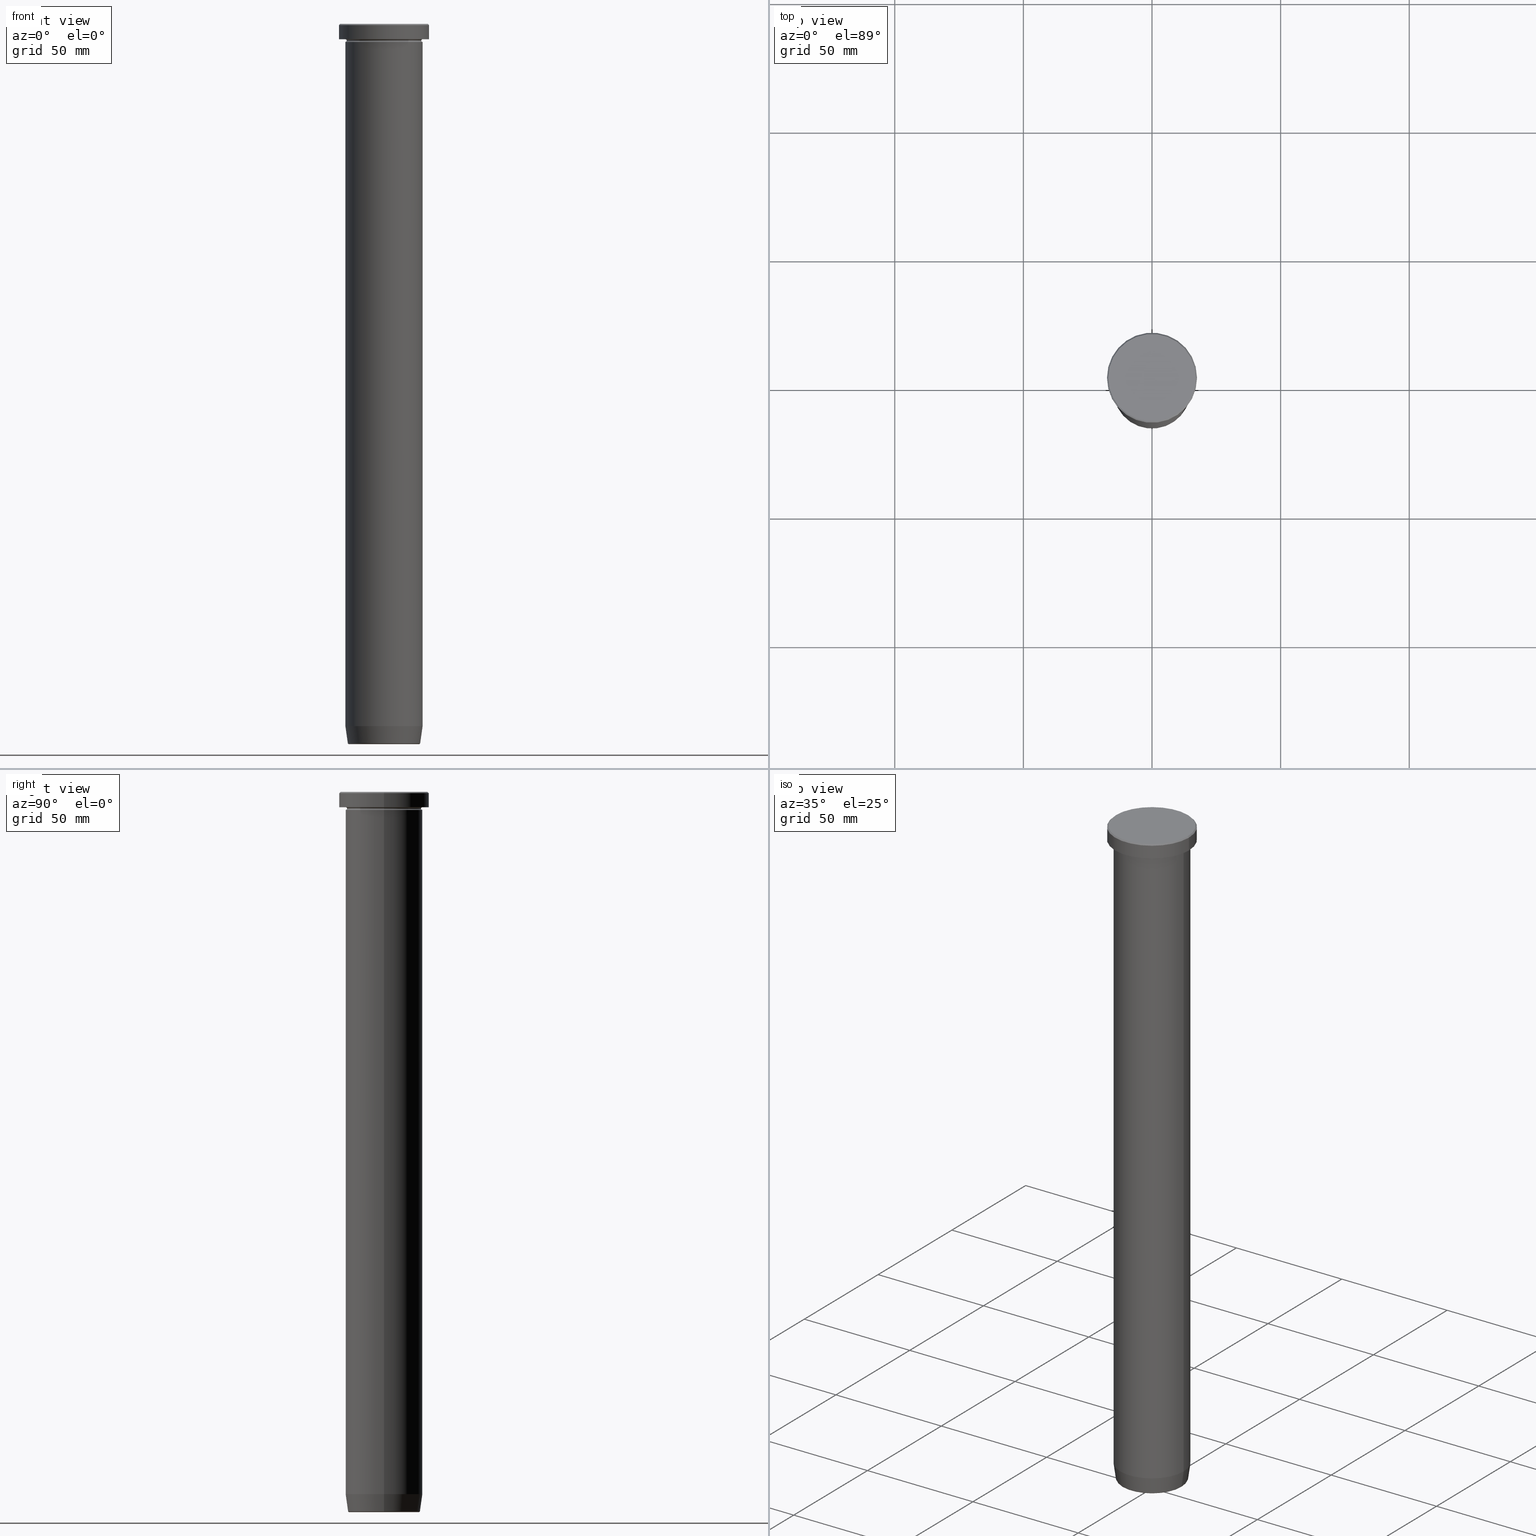
[diagram: canonical four-view strip — front | top / right | iso, engineering-drawing reading convention]
A machine part, canonical four-view strip (front | top / right | iso — engineering-drawing reading convention). The complete STEP part file that produces these views, byte-faithful:
ISO-10303-21;
HEADER;
FILE_DESCRIPTION (( 'STEP AP203' ),
    '1' );
FILE_NAME ('0d3d.STEP',
    '2024-01-02T17:49:23',
    ( '' ),
    ( '' ),
    'SwSTEP 2.0',
    'SolidWorks 2019',
    '' );
FILE_SCHEMA (( 'CONFIG_CONTROL_DESIGN' ));
ENDSEC;

DATA;
#1 = CARTESIAN_POINT ( 'NONE',  ( 0.000000000000000000, 0.000000000000000000, -6.499999999999999112 ) ) ;
#2 = AXIS2_PLACEMENT_3D ( 'NONE', #531, #187, #538 ) ;
#3 = VECTOR ( 'NONE', #555, 1000.000000000000000 ) ;
#4 = DIRECTION ( 'NONE',  ( -1.224646799147353207E-16, 1.000000000000000000, 0.000000000000000000 ) ) ;
#5 = ORIENTED_EDGE ( 'NONE', *, *, #525, .F. ) ;
#6 = LINE ( 'NONE', #207, #475 ) ;
#7 = CARTESIAN_POINT ( 'NONE',  ( 0.000000000000000000, 0.000000000000000000, -5.999999999999999112 ) ) ;
#8 = DIRECTION ( 'NONE',  ( -1.000000000000000000, 0.000000000000000000, 0.000000000000000000 ) ) ;
#9 = EDGE_CURVE ( 'NONE', #55, #444, #69, .T. ) ;
#10 = VERTEX_POINT ( 'NONE', #107 ) ;
#11 = DIRECTION ( 'NONE',  ( 1.000000000000000000, 0.000000000000000000, 0.000000000000000000 ) ) ;
#12 = AXIS2_PLACEMENT_3D ( 'NONE', #355, #528, #245 ) ;
#13 = CARTESIAN_POINT ( 'NONE',  ( 0.000000000000000000, 0.000000000000000000, -279.4999999999999432 ) ) ;
#14 = DIRECTION ( 'NONE',  ( 1.000000000000000000, 0.000000000000000000, 0.000000000000000000 ) ) ;
#15 = PRODUCT_RELATED_PRODUCT_CATEGORY ( 'detail', '', ( #356 ) ) ;
#16 = ORIENTED_EDGE ( 'NONE', *, *, #377, .T. ) ;
#17 = ADVANCED_FACE ( 'NONE', ( #269 ), #265, .T. ) ;
#18 = DIRECTION ( 'NONE',  ( 1.000000000000000000, 0.000000000000000000, 0.000000000000000000 ) ) ;
#19 = ORIENTED_EDGE ( 'NONE', *, *, #571, .F. ) ;
#20 = AXIS2_PLACEMENT_3D ( 'NONE', #497, #111, #354 ) ;
#21 = AXIS2_PLACEMENT_3D ( 'NONE', #273, #219, #26 ) ;
#22 = CARTESIAN_POINT ( 'NONE',  ( -17.50000000000000000, 2.143131898507868248E-15, -0.5000000000000073275 ) ) ;
#23 = EDGE_LOOP ( 'NONE', ( #110, #16, #183, #30 ) ) ;
#24 = ORIENTED_EDGE ( 'NONE', *, *, #389, .T. ) ;
#25 = DIRECTION ( 'NONE',  ( 1.000000000000000000, 0.000000000000000000, 0.000000000000000000 ) ) ;
#26 = DIRECTION ( 'NONE',  ( -1.000000000000000000, 0.000000000000000000, 0.000000000000000000 ) ) ;
#27 = ORIENTED_EDGE ( 'NONE', *, *, #334, .F. ) ;
#28 = ORIENTED_EDGE ( 'NONE', *, *, #389, .F. ) ;
#29 = ORIENTED_EDGE ( 'NONE', *, *, #38, .F. ) ;
#30 = ORIENTED_EDGE ( 'NONE', *, *, #420, .F. ) ;
#31 = CARTESIAN_POINT ( 'NONE',  ( -17.00000000000000000, 0.000000000000000000, 0.000000000000000000 ) ) ;
#32 = PERSON_AND_ORGANIZATION_ROLE ( 'creator' ) ;
#33 = AXIS2_PLACEMENT_3D ( 'NONE', #40, #128, #409 ) ;
#34 = CIRCLE ( 'NONE', #12, 17.50000000000000000 ) ;
#35 = CC_DESIGN_PERSON_AND_ORGANIZATION_ASSIGNMENT ( #550, #32, ( #427 ) ) ;
#36 = DIRECTION ( 'NONE',  ( 1.000000000000000000, 0.000000000000000000, 0.000000000000000000 ) ) ;
#37 =( GEOMETRIC_REPRESENTATION_CONTEXT ( 3 ) GLOBAL_UNCERTAINTY_ASSIGNED_CONTEXT ( ( #295 ) ) GLOBAL_UNIT_ASSIGNED_CONTEXT ( ( #42, #567, #325 ) ) REPRESENTATION_CONTEXT ( 'NONE', 'WORKASPACE' ) );
#38 = EDGE_CURVE ( 'NONE', #401, #10, #486, .T. ) ;
#39 = PERSON_AND_ORGANIZATION ( #157, #470 ) ;
#40 = CARTESIAN_POINT ( 'NONE',  ( 0.000000000000000000, 15.00000000000000000, -36.00000000000000000 ) ) ;
#41 = VERTEX_POINT ( 'NONE', #22 ) ;
#42 =( LENGTH_UNIT ( ) NAMED_UNIT ( * ) SI_UNIT ( .MILLI., .METRE. ) );
#43 = AXIS2_PLACEMENT_3D ( 'NONE', #326, #319, #541 ) ;
#44 = APPROVAL_ROLE ( '' ) ;
#45 = PERSON_AND_ORGANIZATION_ROLE ( 'design_owner' ) ;
#46 = DIRECTION ( 'NONE',  ( -1.000000000000000000, 1.224646799147353454E-16, 0.000000000000000000 ) ) ;
#47 = DIRECTION ( 'NONE',  ( -0.000000000000000000, -0.000000000000000000, 1.000000000000000000 ) ) ;
#48 = ORIENTED_EDGE ( 'NONE', *, *, #226, .T. ) ;
#49 = AXIS2_PLACEMENT_3D ( 'NONE', #244, #414, #376 ) ;
#50 = EDGE_CURVE ( 'NONE', #575, #443, #556, .T. ) ;
#51 = ORIENTED_EDGE ( 'NONE', *, *, #461, .F. ) ;
#52 = CIRCLE ( 'NONE', #379, 0.5000000000000004441 ) ;
#53 = AXIS2_PLACEMENT_3D ( 'NONE', #374, #368, #258 ) ;
#54 = DIRECTION ( 'NONE',  ( -0.000000000000000000, -0.000000000000000000, 1.000000000000000000 ) ) ;
#55 = VERTEX_POINT ( 'NONE', #166 ) ;
#56 = DIRECTION ( 'NONE',  ( -0.000000000000000000, -1.000000000000000000, -0.000000000000000000 ) ) ;
#57 = CARTESIAN_POINT ( 'NONE',  ( 0.000000000000000000, 0.000000000000000000, -36.00000000000000000 ) ) ;
#58 = CARTESIAN_POINT ( 'NONE',  ( 0.000000000000000000, 0.000000000000000000, 0.000000000000000000 ) ) ;
#59 = AXIS2_PLACEMENT_3D ( 'NONE', #267, #309, #63 ) ;
#60 = DIRECTION ( 'NONE',  ( -0.000000000000000000, -0.000000000000000000, 1.000000000000000000 ) ) ;
#61 = EDGE_CURVE ( 'NONE', #41, #599, #34, .T. ) ;
#62 = DIRECTION ( 'NONE',  ( 0.000000000000000000, 0.000000000000000000, -1.000000000000000000 ) ) ;
#63 = DIRECTION ( 'NONE',  ( 1.000000000000000000, 0.000000000000000000, 0.000000000000000000 ) ) ;
#64 = VERTEX_POINT ( 'NONE', #416 ) ;
#65 = EDGE_LOOP ( 'NONE', ( #496, #504, #314, #425 ) ) ;
#66 = ORIENTED_EDGE ( 'NONE', *, *, #482, .T. ) ;
#67 = CONICAL_SURFACE ( 'NONE', #408, 17.00000000000000000, 0.7853981633974415066 ) ;
#68 = FACE_OUTER_BOUND ( 'NONE', #179, .T. ) ;
#69 = CIRCLE ( 'NONE', #514, 14.49999999999999822 ) ;
#70 = VERTEX_POINT ( 'NONE', #141 ) ;
#71 = CARTESIAN_POINT ( 'NONE',  ( -15.00000000000000000, 1.836970198721029589E-15, -272.9999999999999432 ) ) ;
#72 = EDGE_CURVE ( 'NONE', #10, #437, #353, .T. ) ;
#73 = FACE_OUTER_BOUND ( 'NONE', #546, .T. ) ;
#74 = PERSON_AND_ORGANIZATION ( #157, #470 ) ;
#75 = CONICAL_SURFACE ( 'NONE', #250, 14.01621415708325280, 0.1396263401595470577 ) ;
#76 = EDGE_CURVE ( 'NONE', #143, #64, #522, .T. ) ;
#77 = DIRECTION ( 'NONE',  ( 0.000000000000000000, 0.000000000000000000, -1.000000000000000000 ) ) ;
#78 = CALENDAR_DATE ( 2024, 2, 1 ) ;
#79 = ORIENTED_EDGE ( 'NONE', *, *, #552, .F. ) ;
#80 = DIRECTION ( 'NONE',  ( 1.224646799147353207E-16, 1.000000000000000000, 0.000000000000000000 ) ) ;
#81 = APPROVAL ( #373, 'NEUR�EN�' ) ;
#82 = CARTESIAN_POINT ( 'NONE',  ( 0.000000000000000000, 0.000000000000000000, -279.5695865504799826 ) ) ;
#83 = AXIS2_PLACEMENT_3D ( 'NONE', #299, #253, #431 ) ;
#84 = FACE_BOUND ( 'NONE', #371, .T. ) ;
#85 = VERTEX_POINT ( 'NONE', #342 ) ;
#86 = ORIENTED_EDGE ( 'NONE', *, *, #242, .T. ) ;
#87 = EDGE_CURVE ( 'NONE', #444, #55, #563, .T. ) ;
#88 = ADVANCED_FACE ( 'NONE', ( #383 ), #310, .T. ) ;
#89 = DIRECTION ( 'NONE',  ( -0.000000000000000000, -0.000000000000000000, 1.000000000000000000 ) ) ;
#90 = CIRCLE ( 'NONE', #392, 0.5000000000000004441 ) ;
#91 = AXIS2_PLACEMENT_3D ( 'NONE', #469, #348, #292 ) ;
#92 = ORIENTED_EDGE ( 'NONE', *, *, #535, .F. ) ;
#93 = CIRCLE ( 'NONE', #202, 15.00000000000000000 ) ;
#94 = DIRECTION ( 'NONE',  ( 0.000000000000000000, 0.000000000000000000, -1.000000000000000000 ) ) ;
#95 = ORIENTED_EDGE ( 'NONE', *, *, #209, .T. ) ;
#96 = DIRECTION ( 'NONE',  ( -1.000000000000000000, 0.000000000000000000, 0.000000000000000000 ) ) ;
#97 = EDGE_CURVE ( 'NONE', #264, #437, #302, .T. ) ;
#98 = FACE_OUTER_BOUND ( 'NONE', #212, .T. ) ;
#99 = FACE_OUTER_BOUND ( 'NONE', #341, .T. ) ;
#100 = ORIENTED_EDGE ( 'NONE', *, *, #518, .F. ) ;
#101 = LOCAL_TIME ( 18, 49, 23.00000000000000000, #407 ) ;
#102 = FACE_OUTER_BOUND ( 'NONE', #381, .T. ) ;
#103 = ORIENTED_EDGE ( 'NONE', *, *, #362, .F. ) ;
#104 = DIRECTION ( 'NONE',  ( -1.000000000000000000, 1.224646799147349509E-16, 0.000000000000000000 ) ) ;
#105 = AXIS2_PLACEMENT_3D ( 'NONE', #261, #390, #8 ) ;
#106 = AXIS2_PLACEMENT_3D ( 'NONE', #58, #474, #151 ) ;
#107 = CARTESIAN_POINT ( 'NONE',  ( 15.00000000000000000, 0.000000000000000000, -36.00000000000000000 ) ) ;
#108 = PRODUCT_DEFINITION ( 'NEZN�M�', '', #427, #351 ) ;
#109 = VERTEX_POINT ( 'NONE', #122 ) ;
#110 = ORIENTED_EDGE ( 'NONE', *, *, #9, .T. ) ;
#111 = DIRECTION ( 'NONE',  ( 0.000000000000000000, -1.000000000000000000, 0.000000000000000000 ) ) ;
#112 = ORIENTED_EDGE ( 'NONE', *, *, #579, .F. ) ;
#113 = CYLINDRICAL_SURFACE ( 'NONE', #43, 17.50000000000000000 ) ;
#114 = ORIENTED_EDGE ( 'NONE', *, *, #238, .T. ) ;
#115 = LINE ( 'NONE', #584, #592 ) ;
#116 = CALENDAR_DATE ( 2024, 2, 1 ) ;
#117 = CARTESIAN_POINT ( 'NONE',  ( 0.000000000000000000, 0.000000000000000000, 0.000000000000000000 ) ) ;
#118 = PERSON_AND_ORGANIZATION_ROLE ( 'design_supplier' ) ;
#119 = CARTESIAN_POINT ( 'NONE',  ( 17.50000000000000000, 0.000000000000000000, -0.5000000000000073275 ) ) ;
#120 = EDGE_CURVE ( 'NONE', #444, #143, #52, .T. ) ;
#121 = DIRECTION ( 'NONE',  ( -0.000000000000000000, -0.000000000000000000, 1.000000000000000000 ) ) ;
#122 = CARTESIAN_POINT ( 'NONE',  ( 14.07670482254592592, 0.000000000000000000, -279.5695865504799826 ) ) ;
#123 = CIRCLE ( 'NONE', #346, 17.50000000000000000 ) ;
#124 = APPLICATION_PROTOCOL_DEFINITION ( 'international standard', 'config_control_design', 1994, #484 ) ;
#125 = DIRECTION ( 'NONE',  ( -1.000000000000000000, 0.000000000000000000, -0.000000000000000000 ) ) ;
#126 = DIRECTION ( 'NONE',  ( 0.000000000000000000, 0.000000000000000000, -1.000000000000000000 ) ) ;
#127 = EDGE_LOOP ( 'NONE', ( #5, #578, #480, #384 ) ) ;
#128 = DIRECTION ( 'NONE',  ( 0.000000000000000000, 0.000000000000000000, -1.000000000000000000 ) ) ;
#129 = CARTESIAN_POINT ( 'NONE',  ( -15.00000000000000000, 0.000000000000000000, -5.999999999999998224 ) ) ;
#130 = FACE_OUTER_BOUND ( 'NONE', #131, .T. ) ;
#131 = EDGE_LOOP ( 'NONE', ( #19, #92, #210, #112 ) ) ;
#132 = DIRECTION ( 'NONE',  ( 0.7071067811865426878, 8.659560562354874926E-17, -0.7071067811865524577 ) ) ;
#133 = ADVANCED_BREP_SHAPE_REPRESENTATION ( '0d3d', ( #186, #169, #349 ), #37 ) ;
#134 = VERTEX_POINT ( 'NONE', #256 ) ;
#135 = AXIS2_PLACEMENT_3D ( 'NONE', #365, #530, #125 ) ;
#136 = DIRECTION ( 'NONE',  ( -0.000000000000000000, -0.000000000000000000, 1.000000000000000000 ) ) ;
#137 = AXIS2_PLACEMENT_3D ( 'NONE', #296, #54, #251 ) ;
#138 = CARTESIAN_POINT ( 'NONE',  ( 0.000000000000000000, 0.000000000000000000, -5.999999999999999112 ) ) ;
#139 = TOROIDAL_SURFACE ( 'NONE', #423, 15.00000000000000000, 0.5000000000000000000 ) ;
#140 = FACE_OUTER_BOUND ( 'NONE', #65, .T. ) ;
#141 = CARTESIAN_POINT ( 'NONE',  ( 17.00000000000000000, 2.112515728529184067E-15, 0.000000000000000000 ) ) ;
#142 = CARTESIAN_POINT ( 'NONE',  ( 14.49999999999999822, 0.000000000000000000, -6.499999999999999112 ) ) ;
#143 = VERTEX_POINT ( 'NONE', #211 ) ;
#144 = CARTESIAN_POINT ( 'NONE',  ( 15.00000000000000000, 0.000000000000000000, -36.00000000000000000 ) ) ;
#145 = CARTESIAN_POINT ( 'NONE',  ( -17.50000000000000000, 2.143131898507868248E-15, -5.999999999999999112 ) ) ;
#146 = APPROVAL_PERSON_ORGANIZATION ( #74, #178, #44 ) ;
#147 = DIRECTION ( 'NONE',  ( -0.000000000000000000, -0.000000000000000000, 1.000000000000000000 ) ) ;
#148 = CARTESIAN_POINT ( 'NONE',  ( -15.00000000000000000, 1.836970198721029589E-15, -36.00000000000000000 ) ) ;
#149 = ORIENTED_EDGE ( 'NONE', *, *, #426, .T. ) ;
#150 = LINE ( 'NONE', #204, #3 ) ;
#151 = DIRECTION ( 'NONE',  ( 1.000000000000000000, 0.000000000000000000, 0.000000000000000000 ) ) ;
#152 = ORIENTED_EDGE ( 'NONE', *, *, #367, .T. ) ;
#153 = TOROIDAL_SURFACE ( 'NONE', #105, 15.00000000000000000, 0.5000000000000000000 ) ;
#154 = DIRECTION ( 'NONE',  ( 1.000000000000000000, 0.000000000000000000, 0.000000000000000000 ) ) ;
#155 = EDGE_LOOP ( 'NONE', ( #198, #149 ) ) ;
#156 = DIRECTION ( 'NONE',  ( 0.000000000000000000, -0.000000000000000000, 1.000000000000000000 ) ) ;
#157 = PERSON ( 'NEUR�EN�', 'NEUR�EN�', 'NEUR�EN�', ('NEUR�EN�'), ('NEUR�EN�'), ('NEUR�EN�') ) ;
#158 = CARTESIAN_POINT ( 'NONE',  ( 0.000000000000000000, 0.000000000000000000, -279.9999999999999432 ) ) ;
#159 = LINE ( 'NONE', #520, #307 ) ;
#160 = EDGE_CURVE ( 'NONE', #55, #64, #460, .T. ) ;
#161 = CARTESIAN_POINT ( 'NONE',  ( 0.000000000000000000, 0.000000000000000000, -6.999999999999999112 ) ) ;
#162 = DIRECTION ( 'NONE',  ( -0.000000000000000000, -0.000000000000000000, 1.000000000000000000 ) ) ;
#163 = CIRCLE ( 'NONE', #175, 15.00000000000000000 ) ;
#164 = CARTESIAN_POINT ( 'NONE',  ( 15.00000000000000000, 0.000000000000000000, 0.000000000000000000 ) ) ;
#165 = ORIENTED_EDGE ( 'NONE', *, *, #293, .T. ) ;
#166 = CARTESIAN_POINT ( 'NONE',  ( -14.49999999999999822, 1.806354028742345802E-15, -6.499999999999999112 ) ) ;
#167 = FACE_OUTER_BOUND ( 'NONE', #559, .T. ) ;
#168 = DIRECTION ( 'NONE',  ( -1.000000000000000000, 0.000000000000000000, 0.000000000000000000 ) ) ;
#169 = MANIFOLD_SOLID_BREP ( 'Zaoblit4', #320 ) ;
#170 = EDGE_LOOP ( 'NONE', ( #554, #312, #217, #583 ) ) ;
#171 = AXIS2_PLACEMENT_3D ( 'NONE', #82, #594, #421 ) ;
#172 = FACE_OUTER_BOUND ( 'NONE', #387, .T. ) ;
#173 = CIRCLE ( 'NONE', #20, 0.5000000000000004441 ) ;
#174 = AXIS2_PLACEMENT_3D ( 'NONE', #216, #311, #316 ) ;
#175 = AXIS2_PLACEMENT_3D ( 'NONE', #7, #566, #96 ) ;
#176 = PLANE ( 'NONE',  #259 ) ;
#177 = CARTESIAN_POINT ( 'NONE',  ( -13.58157078817513508, 1.663262719313187360E-15, -279.4999999999999432 ) ) ;
#178 = APPROVAL ( #589, 'NEUR�EN�' ) ;
#179 = EDGE_LOOP ( 'NONE', ( #165, #225, #205, #235 ) ) ;
#180 = COORDINATED_UNIVERSAL_TIME_OFFSET ( 1, 0, .AHEAD. ) ;
#181 = DIRECTION ( 'NONE',  ( -1.000000000000000000, 0.000000000000000000, 0.000000000000000000 ) ) ;
#182 = DATE_TIME_ROLE ( 'creation_date' ) ;
#183 = ORIENTED_EDGE ( 'NONE', *, *, #50, .F. ) ;
#184 = CARTESIAN_POINT ( 'NONE',  ( 0.000000000000000000, 0.000000000000000000, -6.499999999999999112 ) ) ;
#185 = DIRECTION ( 'NONE',  ( 1.000000000000000000, 0.000000000000000000, 0.000000000000000000 ) ) ;
#186 = MANIFOLD_SOLID_BREP ( 'Zkosen�1', #359 ) ;
#187 = DIRECTION ( 'NONE',  ( -0.000000000000000000, -0.000000000000000000, 1.000000000000000000 ) ) ;
#188 = CIRCLE ( 'NONE', #171, 14.07670482254592592 ) ;
#189 = CARTESIAN_POINT ( 'NONE',  ( 0.000000000000000000, 0.000000000000000000, 0.000000000000000000 ) ) ;
#190 = AXIS2_PLACEMENT_3D ( 'NONE', #184, #285, #228 ) ;
#191 = ADVANCED_FACE ( 'NONE', ( #99 ), #153, .F. ) ;
#192 = EDGE_CURVE ( 'NONE', #134, #305, #577, .T. ) ;
#193 = CARTESIAN_POINT ( 'NONE',  ( -17.00000000000000000, 0.000000000000000000, 0.000000000000000000 ) ) ;
#194 = CARTESIAN_POINT ( 'NONE',  ( -15.00000000000000000, 1.836970198721029589E-15, -6.499999999999999112 ) ) ;
#195 = DIRECTION ( 'NONE',  ( 1.000000000000000000, 0.000000000000000000, 0.000000000000000000 ) ) ;
#196 = MECHANICAL_CONTEXT ( 'NONE', #484, 'mechanical' ) ;
#197 = APPROVAL_PERSON_ORGANIZATION ( #229, #81, #328 ) ;
#198 = ORIENTED_EDGE ( 'NONE', *, *, #72, .T. ) ;
#199 = CARTESIAN_POINT ( 'NONE',  ( 0.000000000000000000, 0.000000000000000000, -279.9999999999999432 ) ) ;
#200 = CC_DESIGN_SECURITY_CLASSIFICATION ( #501, ( #427 ) ) ;
#201 = DIRECTION ( 'NONE',  ( 1.000000000000000000, 0.000000000000000000, 0.000000000000000000 ) ) ;
#202 = AXIS2_PLACEMENT_3D ( 'NONE', #573, #121, #403 ) ;
#203 = AXIS2_PLACEMENT_3D ( 'NONE', #257, #598, #472 ) ;
#204 = CARTESIAN_POINT ( 'NONE',  ( -15.00000000000000000, 1.836970198721029589E-15, 0.000000000000000000 ) ) ;
#205 = ORIENTED_EDGE ( 'NONE', *, *, #206, .F. ) ;
#206 = EDGE_CURVE ( 'NONE', #401, #264, #239, .T. ) ;
#207 = CARTESIAN_POINT ( 'NONE',  ( 14.01621415708325280, 0.000000000000000000, -279.9999999999999432 ) ) ;
#208 = DIRECTION ( 'NONE',  ( 1.000000000000000000, 0.000000000000000000, 0.000000000000000000 ) ) ;
#209 = EDGE_CURVE ( 'NONE', #305, #134, #308, .T. ) ;
#210 = ORIENTED_EDGE ( 'NONE', *, *, #461, .T. ) ;
#211 = CARTESIAN_POINT ( 'NONE',  ( 15.00000000000000000, 0.000000000000000000, -6.999999999999999112 ) ) ;
#212 = EDGE_LOOP ( 'NONE', ( #317, #48, #289, #246 ) ) ;
#213 = DIRECTION ( 'NONE',  ( -0.000000000000000000, -0.000000000000000000, 1.000000000000000000 ) ) ;
#214 = VERTEX_POINT ( 'NONE', #278 ) ;
#215 = CARTESIAN_POINT ( 'NONE',  ( 15.00000000000000000, 0.000000000000000000, -6.499999999999999112 ) ) ;
#216 = CARTESIAN_POINT ( 'NONE',  ( 0.000000000000000000, 0.000000000000000000, 0.000000000000000000 ) ) ;
#217 = ORIENTED_EDGE ( 'NONE', *, *, #404, .T. ) ;
#218 = EDGE_CURVE ( 'NONE', #305, #143, #445, .T. ) ;
#219 = DIRECTION ( 'NONE',  ( -0.000000000000000000, -0.000000000000000000, 1.000000000000000000 ) ) ;
#220 = EDGE_LOOP ( 'NONE', ( #479, #248 ) ) ;
#221 = VERTEX_POINT ( 'NONE', #361 ) ;
#222 = ORIENTED_EDGE ( 'NONE', *, *, #218, .T. ) ;
#223 = DIRECTION ( 'NONE',  ( -0.000000000000000000, -0.000000000000000000, 1.000000000000000000 ) ) ;
#224 = ORIENTED_EDGE ( 'NONE', *, *, #242, .F. ) ;
#225 = ORIENTED_EDGE ( 'NONE', *, *, #568, .T. ) ;
#226 = EDGE_CURVE ( 'NONE', #264, #401, #93, .T. ) ;
#227 = ORIENTED_EDGE ( 'NONE', *, *, #293, .F. ) ;
#228 = DIRECTION ( 'NONE',  ( -1.000000000000000000, 0.000000000000000000, 0.000000000000000000 ) ) ;
#229 = PERSON_AND_ORGANIZATION ( #157, #470 ) ;
#230 = ADVANCED_FACE ( 'NONE', ( #449 ), #282, .T. ) ;
#231 = PLANE ( 'NONE',  #135 ) ;
#232 = AXIS2_PLACEMENT_3D ( 'NONE', #199, #136, #36 ) ;
#233 = LINE ( 'NONE', #323, #473 ) ;
#234 = APPROVAL_DATE_TIME ( #363, #178 ) ;
#235 = ORIENTED_EDGE ( 'NONE', *, *, #404, .F. ) ;
#236 = VERTEX_POINT ( 'NONE', #330 ) ;
#237 = COORDINATED_UNIVERSAL_TIME_OFFSET ( 1, 0, .AHEAD. ) ;
#238 = EDGE_CURVE ( 'NONE', #599, #41, #394, .T. ) ;
#239 = CIRCLE ( 'NONE', #59, 15.00000000000000000 ) ;
#240 = EDGE_LOOP ( 'NONE', ( #252, #448 ) ) ;
#241 = DATE_AND_TIME ( #279, #101 ) ;
#242 = EDGE_CURVE ( 'NONE', #364, #41, #115, .T. ) ;
#243 = ORIENTED_EDGE ( 'NONE', *, *, #97, .T. ) ;
#244 = CARTESIAN_POINT ( 'NONE',  ( 0.000000000000000000, 0.000000000000000000, 0.000000000000000000 ) ) ;
#245 = DIRECTION ( 'NONE',  ( 1.000000000000000000, 0.000000000000000000, 0.000000000000000000 ) ) ;
#246 = ORIENTED_EDGE ( 'NONE', *, *, #426, .F. ) ;
#247 = DIRECTION ( 'NONE',  ( -1.000000000000000000, -1.224646799147349509E-16, 0.000000000000000000 ) ) ;
#248 = ORIENTED_EDGE ( 'NONE', *, *, #370, .T. ) ;
#249 = DIRECTION ( 'NONE',  ( 1.000000000000000000, 0.000000000000000000, 0.000000000000000000 ) ) ;
#250 = AXIS2_PLACEMENT_3D ( 'NONE', #272, #398, #14 ) ;
#251 = DIRECTION ( 'NONE',  ( 1.000000000000000000, 0.000000000000000000, 0.000000000000000000 ) ) ;
#252 = ORIENTED_EDGE ( 'NONE', *, *, #209, .F. ) ;
#253 = DIRECTION ( 'NONE',  ( -0.000000000000000000, -0.000000000000000000, 1.000000000000000000 ) ) ;
#254 = CARTESIAN_POINT ( 'NONE',  ( -15.00000000000000000, 1.836970198721029589E-15, 0.000000000000000000 ) ) ;
#255 = FACE_OUTER_BOUND ( 'NONE', #23, .T. ) ;
#256 = CARTESIAN_POINT ( 'NONE',  ( -15.00000000000000000, 1.836970198721029589E-15, -36.00000000000000000 ) ) ;
#257 = CARTESIAN_POINT ( 'NONE',  ( 0.000000000000000000, 0.000000000000000000, 0.000000000000000000 ) ) ;
#258 = DIRECTION ( 'NONE',  ( -1.000000000000000000, 0.000000000000000000, -0.000000000000000000 ) ) ;
#259 = AXIS2_PLACEMENT_3D ( 'NONE', #526, #156, #411 ) ;
#260 = AXIS2_PLACEMENT_3D ( 'NONE', #161, #147, #519 ) ;
#261 = CARTESIAN_POINT ( 'NONE',  ( 0.000000000000000000, 0.000000000000000000, -6.499999999999999112 ) ) ;
#262 = ORIENTED_EDGE ( 'NONE', *, *, #377, .F. ) ;
#263 = LOCAL_TIME ( 18, 49, 23.00000000000000000, #180 ) ;
#264 = VERTEX_POINT ( 'NONE', #71 ) ;
#265 = CYLINDRICAL_SURFACE ( 'NONE', #174, 15.00000000000000000 ) ;
#266 = ORIENTED_EDGE ( 'NONE', *, *, #434, .T. ) ;
#267 = CARTESIAN_POINT ( 'NONE',  ( 0.000000000000000000, 0.000000000000000000, -272.9999999999999432 ) ) ;
#268 = DIRECTION ( 'NONE',  ( 0.000000000000000000, -1.000000000000000000, 0.000000000000000000 ) ) ;
#269 = FACE_OUTER_BOUND ( 'NONE', #529, .T. ) ;
#270 = CIRCLE ( 'NONE', #297, 0.5000000000000004441 ) ;
#271 = VECTOR ( 'NONE', #581, 1000.000000000000000 ) ;
#272 = CARTESIAN_POINT ( 'NONE',  ( 0.000000000000000000, 0.000000000000000000, -279.9999999999999432 ) ) ;
#273 = CARTESIAN_POINT ( 'NONE',  ( 0.000000000000000000, 0.000000000000000000, -5.999999999999999112 ) ) ;
#274 = DIRECTION ( 'NONE',  ( -0.000000000000000000, -0.000000000000000000, 1.000000000000000000 ) ) ;
#275 = LOCAL_TIME ( 18, 49, 23.00000000000000000, #593 ) ;
#276 = ORIENTED_EDGE ( 'NONE', *, *, #76, .T. ) ;
#277 = FACE_OUTER_BOUND ( 'NONE', #220, .T. ) ;
#278 = CARTESIAN_POINT ( 'NONE',  ( 17.50000000000000000, 0.000000000000000000, -5.999999999999999112 ) ) ;
#279 = CALENDAR_DATE ( 2024, 2, 1 ) ;
#280 = ADVANCED_FACE ( 'NONE', ( #167 ), #113, .T. ) ;
#281 = DIRECTION ( 'NONE',  ( 1.000000000000000000, 0.000000000000000000, 0.000000000000000000 ) ) ;
#282 = TOROIDAL_SURFACE ( 'NONE', #2, 13.58157078817513508, 0.5000000000000000000 ) ;
#283 = CIRCLE ( 'NONE', #466, 17.00000000000000000 ) ;
#284 = PERSON_AND_ORGANIZATION_ROLE ( 'classification_officer' ) ;
#285 = DIRECTION ( 'NONE',  ( 0.000000000000000000, 0.000000000000000000, -1.000000000000000000 ) ) ;
#286 = SHAPE_DEFINITION_REPRESENTATION ( #322, #133 ) ;
#287 = DIRECTION ( 'NONE',  ( -0.7071067811865426878, 0.000000000000000000, -0.7071067811865524577 ) ) ;
#288 = CIRCLE ( 'NONE', #417, 17.00000000000000000 ) ;
#289 = ORIENTED_EDGE ( 'NONE', *, *, #38, .T. ) ;
#290 = VECTOR ( 'NONE', #442, 1000.000000000000000 ) ;
#291 = FACE_OUTER_BOUND ( 'NONE', #240, .T. ) ;
#292 = DIRECTION ( 'NONE',  ( 1.000000000000000000, 0.000000000000000000, 0.000000000000000000 ) ) ;
#293 = EDGE_CURVE ( 'NONE', #109, #85, #410, .T. ) ;
#294 = DIRECTION ( 'NONE',  ( -0.000000000000000000, -0.000000000000000000, 1.000000000000000000 ) ) ;
#295 = UNCERTAINTY_MEASURE_WITH_UNIT (LENGTH_MEASURE( 1.000000000000000082E-05 ), #42, 'distance_accuracy_value', 'NONE');
#296 = CARTESIAN_POINT ( 'NONE',  ( 0.000000000000000000, 0.000000000000000000, -6.499999999999999112 ) ) ;
#297 = AXIS2_PLACEMENT_3D ( 'NONE', #561, #56, #94 ) ;
#298 = ORIENTED_EDGE ( 'NONE', *, *, #87, .F. ) ;
#299 = CARTESIAN_POINT ( 'NONE',  ( 0.000000000000000000, 0.000000000000000000, -36.00000000000000000 ) ) ;
#300 = ADVANCED_FACE ( 'NONE', ( #172 ), #139, .F. ) ;
#301 = ORIENTED_EDGE ( 'NONE', *, *, #87, .T. ) ;
#302 = LINE ( 'NONE', #254, #476 ) ;
#303 = ORIENTED_EDGE ( 'NONE', *, *, #218, .F. ) ;
#304 = APPROVAL_DATE_TIME ( #534, #539 ) ;
#305 = VERTEX_POINT ( 'NONE', #144 ) ;
#306 = EDGE_CURVE ( 'NONE', #443, #575, #163, .T. ) ;
#307 = VECTOR ( 'NONE', #60, 1000.000000000000000 ) ;
#308 = CIRCLE ( 'NONE', #454, 15.00000000000000000 ) ;
#309 = DIRECTION ( 'NONE',  ( -0.000000000000000000, -0.000000000000000000, 1.000000000000000000 ) ) ;
#310 = CYLINDRICAL_SURFACE ( 'NONE', #106, 15.00000000000000000 ) ;
#311 = DIRECTION ( 'NONE',  ( -0.000000000000000000, -0.000000000000000000, 1.000000000000000000 ) ) ;
#312 = ORIENTED_EDGE ( 'NONE', *, *, #579, .T. ) ;
#313 = CC_DESIGN_PERSON_AND_ORGANIZATION_ASSIGNMENT ( #39, #396, ( #108 ) ) ;
#314 = ORIENTED_EDGE ( 'NONE', *, *, #334, .T. ) ;
#315 = CARTESIAN_POINT ( 'NONE',  ( 0.000000000000000000, 0.000000000000000000, -0.5000000000000073275 ) ) ;
#316 = DIRECTION ( 'NONE',  ( 1.000000000000000000, 0.000000000000000000, 0.000000000000000000 ) ) ;
#317 = ORIENTED_EDGE ( 'NONE', *, *, #97, .F. ) ;
#318 = EDGE_LOOP ( 'NONE', ( #360, #450, #227, #51 ) ) ;
#319 = DIRECTION ( 'NONE',  ( -0.000000000000000000, -0.000000000000000000, 1.000000000000000000 ) ) ;
#320 = CLOSED_SHELL ( 'NONE', ( #230, #446, #333, #558, #352, #597, #468, #453 ) ) ;
#321 = DIRECTION ( 'NONE',  ( 0.000000000000000000, 0.000000000000000000, -1.000000000000000000 ) ) ;
#322 = PRODUCT_DEFINITION_SHAPE ( 'NONE', 'NONE',  #108 ) ;
#323 = CARTESIAN_POINT ( 'NONE',  ( -14.01621415708325280, 1.716491180363582438E-15, -279.9999999999999432 ) ) ;
#324 = ADVANCED_FACE ( 'NONE', ( #255 ), #332, .F. ) ;
#325 =( NAMED_UNIT ( * ) SI_UNIT ( $, .STERADIAN. ) SOLID_ANGLE_UNIT ( ) );
#326 = CARTESIAN_POINT ( 'NONE',  ( 0.000000000000000000, 0.000000000000000000, 0.000000000000000000 ) ) ;
#327 = FACE_OUTER_BOUND ( 'NONE', #155, .T. ) ;
#328 = APPROVAL_ROLE ( '' ) ;
#329 = ADVANCED_FACE ( 'NONE', ( #527 ), #385, .T. ) ;
#330 = CARTESIAN_POINT ( 'NONE',  ( 13.58157078817513508, 0.000000000000000000, -279.9999999999999432 ) ) ;
#331 = TOROIDAL_SURFACE ( 'NONE', #432, 13.58157078817513508, 0.5000000000000000000 ) ;
#332 = TOROIDAL_SURFACE ( 'NONE', #190, 15.00000000000000000, 0.5000000000000000000 ) ;
#333 = ADVANCED_FACE ( 'NONE', ( #73 ), #517, .T. ) ;
#334 = EDGE_CURVE ( 'NONE', #64, #143, #393, .T. ) ;
#335 = EDGE_LOOP ( 'NONE', ( #152, #481 ) ) ;
#336 = LINE ( 'NONE', #193, #590 ) ;
#337 = DATE_AND_TIME ( #595, #596 ) ;
#338 = AXIS2_PLACEMENT_3D ( 'NONE', #57, #562, #154 ) ;
#339 = CARTESIAN_POINT ( 'NONE',  ( 0.000000000000000000, 0.000000000000000000, -36.00000000000000000 ) ) ;
#340 = CC_DESIGN_APPROVAL ( #81, ( #427 ) ) ;
#341 = EDGE_LOOP ( 'NONE', ( #262, #301, #521, #422 ) ) ;
#342 = CARTESIAN_POINT ( 'NONE',  ( -14.07670482254592592, 1.780434674534163799E-15, -279.5695865504799826 ) ) ;
#343 = DIRECTION ( 'NONE',  ( -0.000000000000000000, -0.000000000000000000, 1.000000000000000000 ) ) ;
#344 = ORIENTED_EDGE ( 'NONE', *, *, #50, .T. ) ;
#345 = CARTESIAN_POINT ( 'NONE',  ( 0.000000000000000000, 0.000000000000000000, -5.999999999999999112 ) ) ;
#346 = AXIS2_PLACEMENT_3D ( 'NONE', #138, #507, #439 ) ;
#347 = ORIENTED_EDGE ( 'NONE', *, *, #362, .T. ) ;
#348 = DIRECTION ( 'NONE',  ( -0.000000000000000000, -0.000000000000000000, 1.000000000000000000 ) ) ;
#349 = AXIS2_PLACEMENT_3D ( 'NONE', #537, #395, #570 ) ;
#350 = CARTESIAN_POINT ( 'NONE',  ( 15.00000000000000000, 1.836970198721029589E-15, -5.999999999999998224 ) ) ;
#351 = DESIGN_CONTEXT ( 'detailed design', #572, 'design' ) ;
#352 = ADVANCED_FACE ( 'NONE', ( #98 ), #415, .T. ) ;
#353 = CIRCLE ( 'NONE', #433, 15.00000000000000000 ) ;
#354 = DIRECTION ( 'NONE',  ( 0.000000000000000000, 0.000000000000000000, -1.000000000000000000 ) ) ;
#355 = CARTESIAN_POINT ( 'NONE',  ( 0.000000000000000000, 0.000000000000000000, -0.5000000000000073275 ) ) ;
#356 = PRODUCT ( '0d3d', '0d3d', '', ( #196 ) ) ;
#357 = ADVANCED_FACE ( 'NONE', ( #419 ), #508, .T. ) ;
#358 = ORIENTED_EDGE ( 'NONE', *, *, #72, .F. ) ;
#359 = CLOSED_SHELL ( 'NONE', ( #329, #324, #399, #88, #280, #495, #503, #357, #478, #17, #300, #191, #588 ) ) ;
#360 = ORIENTED_EDGE ( 'NONE', *, *, #370, .F. ) ;
#361 = CARTESIAN_POINT ( 'NONE',  ( -13.58157078817513508, 1.693580934830242487E-15, -279.9999999999999432 ) ) ;
#362 = EDGE_CURVE ( 'NONE', #214, #364, #569, .T. ) ;
#363 = DATE_AND_TIME ( #78, #516 ) ;
#364 = VERTEX_POINT ( 'NONE', #145 ) ;
#365 = CARTESIAN_POINT ( 'NONE',  ( 0.000000000000000000, 0.000000000000000000, -36.00000000000000000 ) ) ;
#366 = DATE_AND_TIME ( #455, #275 ) ;
#367 = EDGE_CURVE ( 'NONE', #557, #70, #283, .T. ) ;
#368 = DIRECTION ( 'NONE',  ( 0.000000000000000000, 0.000000000000000000, -1.000000000000000000 ) ) ;
#369 = CIRCLE ( 'NONE', #83, 15.00000000000000000 ) ;
#370 = EDGE_CURVE ( 'NONE', #221, #236, #499, .T. ) ;
#371 = EDGE_LOOP ( 'NONE', ( #344, #512 ) ) ;
#372 = LINE ( 'NONE', #452, #400 ) ;
#373 = APPROVAL_STATUS ( 'not_yet_approved' ) ;
#374 = CARTESIAN_POINT ( 'NONE',  ( 0.000000000000000000, 17.50000000000000000, -5.999999999999999112 ) ) ;
#375 = ORIENTED_EDGE ( 'NONE', *, *, #61, .T. ) ;
#376 = DIRECTION ( 'NONE',  ( 1.000000000000000000, 0.000000000000000000, 0.000000000000000000 ) ) ;
#377 = EDGE_CURVE ( 'NONE', #444, #443, #459, .T. ) ;
#378 = CARTESIAN_POINT ( 'NONE',  ( 15.00000000000000000, 1.836970198721029589E-15, -6.499999999999999112 ) ) ;
#379 = AXIS2_PLACEMENT_3D ( 'NONE', #215, #268, #62 ) ;
#380 = CARTESIAN_POINT ( 'NONE',  ( 15.00000000000000000, 0.000000000000000000, -272.9999999999999432 ) ) ;
#381 = EDGE_LOOP ( 'NONE', ( #103, #100 ) ) ;
#382 = CARTESIAN_POINT ( 'NONE',  ( 0.000000000000000000, 0.000000000000000000, 0.000000000000000000 ) ) ;
#383 = FACE_OUTER_BOUND ( 'NONE', #487, .T. ) ;
#384 = ORIENTED_EDGE ( 'NONE', *, *, #482, .F. ) ;
#385 = CONICAL_SURFACE ( 'NONE', #402, 17.00000000000000000, 0.7853981633974415066 ) ;
#386 = AXIS2_PLACEMENT_3D ( 'NONE', #488, #274, #533 ) ;
#387 = EDGE_LOOP ( 'NONE', ( #574, #298, #412, #276 ) ) ;
#388 = DIRECTION ( 'NONE',  ( 1.000000000000000000, 0.000000000000000000, 0.000000000000000000 ) ) ;
#389 = EDGE_CURVE ( 'NONE', #134, #64, #150, .T. ) ;
#390 = DIRECTION ( 'NONE',  ( 0.000000000000000000, 0.000000000000000000, -1.000000000000000000 ) ) ;
#391 = CARTESIAN_POINT ( 'NONE',  ( 0.000000000000000000, 0.000000000000000000, 0.000000000000000000 ) ) ;
#392 = AXIS2_PLACEMENT_3D ( 'NONE', #177, #80, #46 ) ;
#393 = CIRCLE ( 'NONE', #523, 15.00000000000000000 ) ;
#394 = CIRCLE ( 'NONE', #441, 17.50000000000000000 ) ;
#395 = DIRECTION ( 'NONE',  ( 0.000000000000000000, 0.000000000000000000, 1.000000000000000000 ) ) ;
#396 = PERSON_AND_ORGANIZATION_ROLE ( 'creator' ) ;
#397 = EDGE_LOOP ( 'NONE', ( #79, #435, #66, #549 ) ) ;
#398 = DIRECTION ( 'NONE',  ( -0.000000000000000000, -0.000000000000000000, 1.000000000000000000 ) ) ;
#399 = ADVANCED_FACE ( 'NONE', ( #140 ), #440, .F. ) ;
#400 = VECTOR ( 'NONE', #132, 1000.000000000000000 ) ;
#401 = VERTEX_POINT ( 'NONE', #380 ) ;
#402 = AXIS2_PLACEMENT_3D ( 'NONE', #189, #321, #181 ) ;
#403 = DIRECTION ( 'NONE',  ( 1.000000000000000000, 0.000000000000000000, 0.000000000000000000 ) ) ;
#404 = EDGE_CURVE ( 'NONE', #109, #401, #6, .T. ) ;
#405 = CARTESIAN_POINT ( 'NONE',  ( 0.000000000000000000, 0.000000000000000000, -279.9999999999999432 ) ) ;
#406 = PERSON_AND_ORGANIZATION ( #157, #470 ) ;
#407 = COORDINATED_UNIVERSAL_TIME_OFFSET ( 1, 0, .AHEAD. ) ;
#408 = AXIS2_PLACEMENT_3D ( 'NONE', #391, #485, #168 ) ;
#409 = DIRECTION ( 'NONE',  ( -1.000000000000000000, 0.000000000000000000, -0.000000000000000000 ) ) ;
#410 = CIRCLE ( 'NONE', #386, 14.07670482254592592 ) ;
#411 = DIRECTION ( 'NONE',  ( 1.000000000000000000, 0.000000000000000000, 0.000000000000000000 ) ) ;
#412 = ORIENTED_EDGE ( 'NONE', *, *, #120, .T. ) ;
#413 = SECURITY_CLASSIFICATION_LEVEL ( 'unclassified' ) ;
#414 = DIRECTION ( 'NONE',  ( 0.000000000000000000, -0.000000000000000000, 1.000000000000000000 ) ) ;
#415 = CYLINDRICAL_SURFACE ( 'NONE', #203, 15.00000000000000000 ) ;
#416 = CARTESIAN_POINT ( 'NONE',  ( -15.00000000000000000, 1.836970198721029589E-15, -6.999999999999999112 ) ) ;
#417 = AXIS2_PLACEMENT_3D ( 'NONE', #117, #491, #185 ) ;
#418 = CC_DESIGN_PERSON_AND_ORGANIZATION_ASSIGNMENT ( #406, #284, ( #501 ) ) ;
#419 = FACE_OUTER_BOUND ( 'NONE', #471, .T. ) ;
#420 = EDGE_CURVE ( 'NONE', #55, #575, #270, .T. ) ;
#421 = DIRECTION ( 'NONE',  ( -1.000000000000000000, 0.000000000000000000, 0.000000000000000000 ) ) ;
#422 = ORIENTED_EDGE ( 'NONE', *, *, #306, .F. ) ;
#423 = AXIS2_PLACEMENT_3D ( 'NONE', #1, #343, #560 ) ;
#424 = AXIS2_PLACEMENT_3D ( 'NONE', #382, #464, #388 ) ;
#425 = ORIENTED_EDGE ( 'NONE', *, *, #120, .F. ) ;
#426 = EDGE_CURVE ( 'NONE', #437, #10, #369, .T. ) ;
#427 = PRODUCT_DEFINITION_FORMATION_WITH_SPECIFIED_SOURCE ( 'LIBOVOLN�', '', #356, .NOT_KNOWN. ) ;
#428 = DIRECTION ( 'NONE',  ( 1.000000000000000000, 0.000000000000000000, 0.000000000000000000 ) ) ;
#429 = DIRECTION ( 'NONE',  ( -0.000000000000000000, -0.000000000000000000, 1.000000000000000000 ) ) ;
#430 = DIRECTION ( 'NONE',  ( 1.000000000000000000, 0.000000000000000000, 0.000000000000000000 ) ) ;
#431 = DIRECTION ( 'NONE',  ( 1.000000000000000000, 0.000000000000000000, 0.000000000000000000 ) ) ;
#432 = AXIS2_PLACEMENT_3D ( 'NONE', #13, #213, #281 ) ;
#433 = AXIS2_PLACEMENT_3D ( 'NONE', #339, #294, #249 ) ;
#434 = EDGE_CURVE ( 'NONE', #214, #599, #159, .T. ) ;
#435 = ORIENTED_EDGE ( 'NONE', *, *, #367, .F. ) ;
#436 = CARTESIAN_POINT ( 'NONE',  ( 0.000000000000000000, 0.000000000000000000, -36.00000000000000000 ) ) ;
#437 = VERTEX_POINT ( 'NONE', #148 ) ;
#438 = CC_DESIGN_PERSON_AND_ORGANIZATION_ASSIGNMENT ( #457, #45, ( #356 ) ) ;
#439 = DIRECTION ( 'NONE',  ( 1.000000000000000000, 0.000000000000000000, 0.000000000000000000 ) ) ;
#440 = TOROIDAL_SURFACE ( 'NONE', #137, 15.00000000000000000, 0.5000000000000000000 ) ;
#441 = AXIS2_PLACEMENT_3D ( 'NONE', #315, #77, #25 ) ;
#442 = DIRECTION ( 'NONE',  ( -0.000000000000000000, -0.000000000000000000, 1.000000000000000000 ) ) ;
#443 = VERTEX_POINT ( 'NONE', #350 ) ;
#444 = VERTEX_POINT ( 'NONE', #142 ) ;
#445 = LINE ( 'NONE', #451, #271 ) ;
#446 = ADVANCED_FACE ( 'NONE', ( #68 ), #75, .T. ) ;
#447 = CARTESIAN_POINT ( 'NONE',  ( 0.000000000000000000, 0.000000000000000000, -6.499999999999999112 ) ) ;
#448 = ORIENTED_EDGE ( 'NONE', *, *, #192, .F. ) ;
#449 = FACE_OUTER_BOUND ( 'NONE', #318, .T. ) ;
#450 = ORIENTED_EDGE ( 'NONE', *, *, #571, .T. ) ;
#451 = CARTESIAN_POINT ( 'NONE',  ( 15.00000000000000000, 0.000000000000000000, 0.000000000000000000 ) ) ;
#452 = CARTESIAN_POINT ( 'NONE',  ( 17.00000000000000000, 2.081899558550500280E-15, 0.000000000000000000 ) ) ;
#453 = ADVANCED_FACE ( 'NONE', ( #130 ), #331, .T. ) ;
#454 = AXIS2_PLACEMENT_3D ( 'NONE', #436, #162, #483 ) ;
#455 = CALENDAR_DATE ( 2024, 2, 1 ) ;
#456 = APPROVAL_STATUS ( 'not_yet_approved' ) ;
#457 = PERSON_AND_ORGANIZATION ( #157, #470 ) ;
#458 = PLANE ( 'NONE',  #33 ) ;
#459 = CIRCLE ( 'NONE', #544, 0.5000000000000004441 ) ;
#460 = CIRCLE ( 'NONE', #545, 0.5000000000000004441 ) ;
#461 = EDGE_CURVE ( 'NONE', #236, #109, #173, .T. ) ;
#462 = FACE_OUTER_BOUND ( 'NONE', #335, .T. ) ;
#463 = DIRECTION ( 'NONE',  ( 0.000000000000000000, 0.000000000000000000, -1.000000000000000000 ) ) ;
#464 = DIRECTION ( 'NONE',  ( -0.000000000000000000, -0.000000000000000000, 1.000000000000000000 ) ) ;
#465 = ORIENTED_EDGE ( 'NONE', *, *, #434, .F. ) ;
#466 = AXIS2_PLACEMENT_3D ( 'NONE', #564, #89, #201 ) ;
#467 = CARTESIAN_POINT ( 'NONE',  ( 0.000000000000000000, 0.000000000000000000, -6.499999999999999112 ) ) ;
#468 = ADVANCED_FACE ( 'NONE', ( #277 ), #176, .F. ) ;
#469 = CARTESIAN_POINT ( 'NONE',  ( 0.000000000000000000, 0.000000000000000000, 0.000000000000000000 ) ) ;
#470 = ORGANIZATION ( 'NEUR�EN�', 'NEUR�EN�', '' ) ;
#471 = EDGE_LOOP ( 'NONE', ( #224, #524, #266, #114 ) ) ;
#472 = DIRECTION ( 'NONE',  ( 1.000000000000000000, 0.000000000000000000, 0.000000000000000000 ) ) ;
#473 = VECTOR ( 'NONE', #490, 1000.000000000000000 ) ;
#474 = DIRECTION ( 'NONE',  ( -0.000000000000000000, -0.000000000000000000, 1.000000000000000000 ) ) ;
#475 = VECTOR ( 'NONE', #513, 1000.000000000000000 ) ;
#476 = VECTOR ( 'NONE', #429, 1000.000000000000000 ) ;
#477 = CC_DESIGN_DATE_AND_TIME_ASSIGNMENT ( #337, #493, ( #501 ) ) ;
#478 = ADVANCED_FACE ( 'NONE', ( #84, #102 ), #547, .T. ) ;
#479 = ORIENTED_EDGE ( 'NONE', *, *, #535, .T. ) ;
#480 = ORIENTED_EDGE ( 'NONE', *, *, #61, .F. ) ;
#481 = ORIENTED_EDGE ( 'NONE', *, *, #525, .T. ) ;
#482 = EDGE_CURVE ( 'NONE', #557, #41, #336, .T. ) ;
#483 = DIRECTION ( 'NONE',  ( 1.000000000000000000, 0.000000000000000000, 0.000000000000000000 ) ) ;
#484 = APPLICATION_CONTEXT ( 'configuration controlled 3d designs of mechanical parts and assemblies' ) ;
#485 = DIRECTION ( 'NONE',  ( 0.000000000000000000, 0.000000000000000000, -1.000000000000000000 ) ) ;
#486 = LINE ( 'NONE', #164, #290 ) ;
#487 = EDGE_LOOP ( 'NONE', ( #95, #24, #532, #303 ) ) ;
#488 = CARTESIAN_POINT ( 'NONE',  ( 0.000000000000000000, 0.000000000000000000, -279.5695865504799826 ) ) ;
#489 = ORIENTED_EDGE ( 'NONE', *, *, #206, .T. ) ;
#490 = DIRECTION ( 'NONE',  ( -0.1391731009600661317, 1.704378926181564302E-17, 0.9902680687415702510 ) ) ;
#491 = DIRECTION ( 'NONE',  ( -0.000000000000000000, -0.000000000000000000, 1.000000000000000000 ) ) ;
#492 = APPLICATION_PROTOCOL_DEFINITION ( 'international standard', 'config_control_design', 1994, #572 ) ;
#493 = DATE_TIME_ROLE ( 'classification_date' ) ;
#494 = AXIS2_PLACEMENT_3D ( 'NONE', #405, #126, #195 ) ;
#495 = ADVANCED_FACE ( 'NONE', ( #291 ), #458, .T. ) ;
#496 = ORIENTED_EDGE ( 'NONE', *, *, #9, .F. ) ;
#497 = CARTESIAN_POINT ( 'NONE',  ( 13.58157078817513508, 0.000000000000000000, -279.4999999999999432 ) ) ;
#498 = AXIS2_PLACEMENT_3D ( 'NONE', #467, #511, #208 ) ;
#499 = CIRCLE ( 'NONE', #505, 13.58157078817513508 ) ;
#500 = APPROVAL_ROLE ( '' ) ;
#501 = SECURITY_CLASSIFICATION ( '', '', #413 ) ;
#502 = FACE_OUTER_BOUND ( 'NONE', #170, .T. ) ;
#503 = ADVANCED_FACE ( 'NONE', ( #462 ), #591, .T. ) ;
#504 = ORIENTED_EDGE ( 'NONE', *, *, #160, .T. ) ;
#505 = AXIS2_PLACEMENT_3D ( 'NONE', #158, #463, #428 ) ;
#506 = CC_DESIGN_DATE_AND_TIME_ASSIGNMENT ( #241, #182, ( #108 ) ) ;
#507 = DIRECTION ( 'NONE',  ( -0.000000000000000000, -0.000000000000000000, 1.000000000000000000 ) ) ;
#508 = CYLINDRICAL_SURFACE ( 'NONE', #91, 17.50000000000000000 ) ;
#509 = CONICAL_SURFACE ( 'NONE', #232, 14.01621415708325280, 0.1396263401595470577 ) ;
#510 = DIRECTION ( 'NONE',  ( -0.000000000000000000, -0.000000000000000000, 1.000000000000000000 ) ) ;
#511 = DIRECTION ( 'NONE',  ( -0.000000000000000000, -0.000000000000000000, 1.000000000000000000 ) ) ;
#512 = ORIENTED_EDGE ( 'NONE', *, *, #306, .T. ) ;
#513 = DIRECTION ( 'NONE',  ( 0.1391731009600661317, 0.000000000000000000, 0.9902680687415702510 ) ) ;
#514 = AXIS2_PLACEMENT_3D ( 'NONE', #447, #565, #18 ) ;
#515 = CARTESIAN_POINT ( 'NONE',  ( 0.000000000000000000, 0.000000000000000000, -6.999999999999999112 ) ) ;
#516 = LOCAL_TIME ( 18, 49, 23.00000000000000000, #237 ) ;
#517 = CYLINDRICAL_SURFACE ( 'NONE', #424, 15.00000000000000000 ) ;
#518 = EDGE_CURVE ( 'NONE', #364, #214, #123, .T. ) ;
#519 = DIRECTION ( 'NONE',  ( 1.000000000000000000, 0.000000000000000000, 0.000000000000000000 ) ) ;
#520 = CARTESIAN_POINT ( 'NONE',  ( 17.50000000000000000, 0.000000000000000000, 0.000000000000000000 ) ) ;
#521 = ORIENTED_EDGE ( 'NONE', *, *, #420, .T. ) ;
#522 = CIRCLE ( 'NONE', #260, 15.00000000000000000 ) ;
#523 = AXIS2_PLACEMENT_3D ( 'NONE', #515, #510, #11 ) ;
#524 = ORIENTED_EDGE ( 'NONE', *, *, #518, .T. ) ;
#525 = EDGE_CURVE ( 'NONE', #70, #557, #288, .T. ) ;
#526 = CARTESIAN_POINT ( 'NONE',  ( 0.000000000000000000, 2.449293598294705803E-14, -279.9999999999999432 ) ) ;
#527 = FACE_OUTER_BOUND ( 'NONE', #127, .T. ) ;
#528 = DIRECTION ( 'NONE',  ( 0.000000000000000000, 0.000000000000000000, -1.000000000000000000 ) ) ;
#529 = EDGE_LOOP ( 'NONE', ( #28, #580, #222, #27 ) ) ;
#530 = DIRECTION ( 'NONE',  ( 0.000000000000000000, 0.000000000000000000, -1.000000000000000000 ) ) ;
#531 = CARTESIAN_POINT ( 'NONE',  ( 0.000000000000000000, 0.000000000000000000, -279.4999999999999432 ) ) ;
#532 = ORIENTED_EDGE ( 'NONE', *, *, #76, .F. ) ;
#533 = DIRECTION ( 'NONE',  ( -1.000000000000000000, 0.000000000000000000, 0.000000000000000000 ) ) ;
#534 = DATE_AND_TIME ( #116, #263 ) ;
#535 = EDGE_CURVE ( 'NONE', #236, #221, #543, .T. ) ;
#536 = FACE_OUTER_BOUND ( 'NONE', #397, .T. ) ;
#537 = CARTESIAN_POINT ( 'NONE',  ( 0.000000000000000000, 0.000000000000000000, 0.000000000000000000 ) ) ;
#538 = DIRECTION ( 'NONE',  ( 1.000000000000000000, 0.000000000000000000, 0.000000000000000000 ) ) ;
#539 = APPROVAL ( #456, 'NEUR�EN�' ) ;
#540 = APPROVAL_DATE_TIME ( #366, #81 ) ;
#541 = DIRECTION ( 'NONE',  ( 1.000000000000000000, 0.000000000000000000, 0.000000000000000000 ) ) ;
#542 = COORDINATED_UNIVERSAL_TIME_OFFSET ( 1, 0, .AHEAD. ) ;
#543 = CIRCLE ( 'NONE', #494, 13.58157078817513508 ) ;
#544 = AXIS2_PLACEMENT_3D ( 'NONE', #378, #4, #247 ) ;
#545 = AXIS2_PLACEMENT_3D ( 'NONE', #194, #548, #104 ) ;
#546 = EDGE_LOOP ( 'NONE', ( #489, #243, #358, #29 ) ) ;
#547 = PLANE ( 'NONE',  #53 ) ;
#548 = DIRECTION ( 'NONE',  ( 1.224646799147353207E-16, 1.000000000000000000, 0.000000000000000000 ) ) ;
#549 = ORIENTED_EDGE ( 'NONE', *, *, #238, .F. ) ;
#550 = PERSON_AND_ORGANIZATION ( #157, #470 ) ;
#551 = APPROVAL_PERSON_ORGANIZATION ( #586, #539, #500 ) ;
#552 = EDGE_CURVE ( 'NONE', #70, #599, #372, .T. ) ;
#553 = CC_DESIGN_APPROVAL ( #178, ( #501 ) ) ;
#554 = ORIENTED_EDGE ( 'NONE', *, *, #568, .F. ) ;
#555 = DIRECTION ( 'NONE',  ( -0.000000000000000000, -0.000000000000000000, 1.000000000000000000 ) ) ;
#556 = CIRCLE ( 'NONE', #21, 15.00000000000000000 ) ;
#557 = VERTEX_POINT ( 'NONE', #31 ) ;
#558 = ADVANCED_FACE ( 'NONE', ( #327 ), #231, .F. ) ;
#559 = EDGE_LOOP ( 'NONE', ( #347, #86, #375, #465 ) ) ;
#560 = DIRECTION ( 'NONE',  ( 1.000000000000000000, 0.000000000000000000, 0.000000000000000000 ) ) ;
#561 = CARTESIAN_POINT ( 'NONE',  ( -15.00000000000000000, 0.000000000000000000, -6.499999999999999112 ) ) ;
#562 = DIRECTION ( 'NONE',  ( -0.000000000000000000, -0.000000000000000000, 1.000000000000000000 ) ) ;
#563 = CIRCLE ( 'NONE', #498, 14.49999999999999822 ) ;
#564 = CARTESIAN_POINT ( 'NONE',  ( 0.000000000000000000, 0.000000000000000000, 0.000000000000000000 ) ) ;
#565 = DIRECTION ( 'NONE',  ( -0.000000000000000000, -0.000000000000000000, 1.000000000000000000 ) ) ;
#566 = DIRECTION ( 'NONE',  ( -0.000000000000000000, -0.000000000000000000, 1.000000000000000000 ) ) ;
#567 =( NAMED_UNIT ( * ) PLANE_ANGLE_UNIT ( ) SI_UNIT ( $, .RADIAN. ) );
#568 = EDGE_CURVE ( 'NONE', #85, #264, #233, .T. ) ;
#569 = CIRCLE ( 'NONE', #576, 17.50000000000000000 ) ;
#570 = DIRECTION ( 'NONE',  ( 1.000000000000000000, 0.000000000000000000, 0.000000000000000000 ) ) ;
#571 = EDGE_CURVE ( 'NONE', #221, #85, #90, .T. ) ;
#572 = APPLICATION_CONTEXT ( 'configuration controlled 3d designs of mechanical parts and assemblies' ) ;
#573 = CARTESIAN_POINT ( 'NONE',  ( 0.000000000000000000, 0.000000000000000000, -272.9999999999999432 ) ) ;
#574 = ORIENTED_EDGE ( 'NONE', *, *, #160, .F. ) ;
#575 = VERTEX_POINT ( 'NONE', #129 ) ;
#576 = AXIS2_PLACEMENT_3D ( 'NONE', #345, #47, #430 ) ;
#577 = CIRCLE ( 'NONE', #338, 15.00000000000000000 ) ;
#578 = ORIENTED_EDGE ( 'NONE', *, *, #552, .T. ) ;
#579 = EDGE_CURVE ( 'NONE', #85, #109, #188, .T. ) ;
#580 = ORIENTED_EDGE ( 'NONE', *, *, #192, .T. ) ;
#581 = DIRECTION ( 'NONE',  ( -0.000000000000000000, -0.000000000000000000, 1.000000000000000000 ) ) ;
#582 = PERSON_AND_ORGANIZATION ( #157, #470 ) ;
#583 = ORIENTED_EDGE ( 'NONE', *, *, #226, .F. ) ;
#584 = CARTESIAN_POINT ( 'NONE',  ( -17.50000000000000000, 2.143131898507868248E-15, 0.000000000000000000 ) ) ;
#585 = CC_DESIGN_APPROVAL ( #539, ( #108 ) ) ;
#586 = PERSON_AND_ORGANIZATION ( #157, #470 ) ;
#587 = CC_DESIGN_PERSON_AND_ORGANIZATION_ASSIGNMENT ( #582, #118, ( #427 ) ) ;
#588 = ADVANCED_FACE ( 'NONE', ( #536 ), #67, .T. ) ;
#589 = APPROVAL_STATUS ( 'not_yet_approved' ) ;
#590 = VECTOR ( 'NONE', #287, 1000.000000000000000 ) ;
#591 = PLANE ( 'NONE',  #49 ) ;
#592 = VECTOR ( 'NONE', #223, 1000.000000000000000 ) ;
#593 = COORDINATED_UNIVERSAL_TIME_OFFSET ( 1, 0, .AHEAD. ) ;
#594 = DIRECTION ( 'NONE',  ( -0.000000000000000000, -0.000000000000000000, 1.000000000000000000 ) ) ;
#595 = CALENDAR_DATE ( 2024, 2, 1 ) ;
#596 = LOCAL_TIME ( 18, 49, 23.00000000000000000, #542 ) ;
#597 = ADVANCED_FACE ( 'NONE', ( #502 ), #509, .T. ) ;
#598 = DIRECTION ( 'NONE',  ( -0.000000000000000000, -0.000000000000000000, 1.000000000000000000 ) ) ;
#599 = VERTEX_POINT ( 'NONE', #119 ) ;
ENDSEC;
END-ISO-10303-21;
